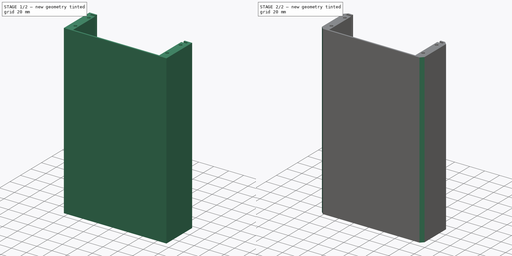
[diagram: build sequence overview — one tinted view per stage of 2, left to right]
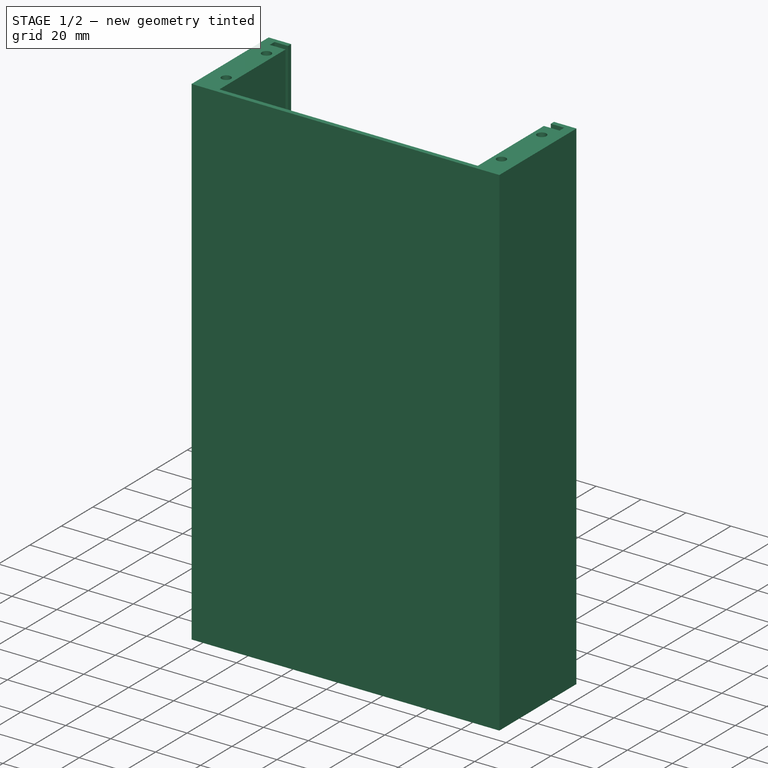
[diagram: stage 1 of 2 — iso view after this stage's code; geometry added in this stage tinted green]
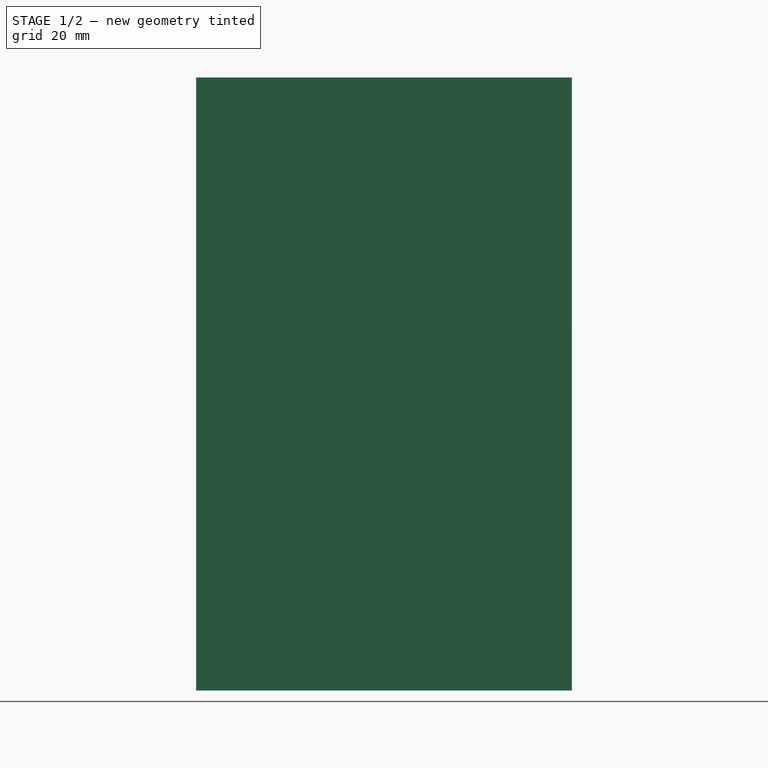
[diagram: stage 1 of 2 — front view after this stage's code; geometry added in this stage tinted green]
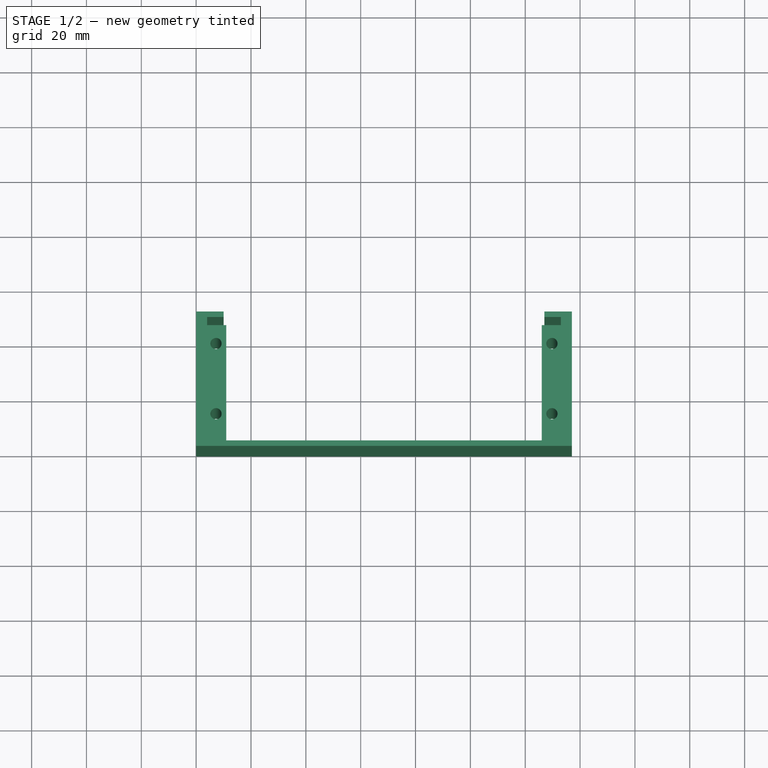
[diagram: stage 1 of 2 — top view after this stage's code; geometry added in this stage tinted green]
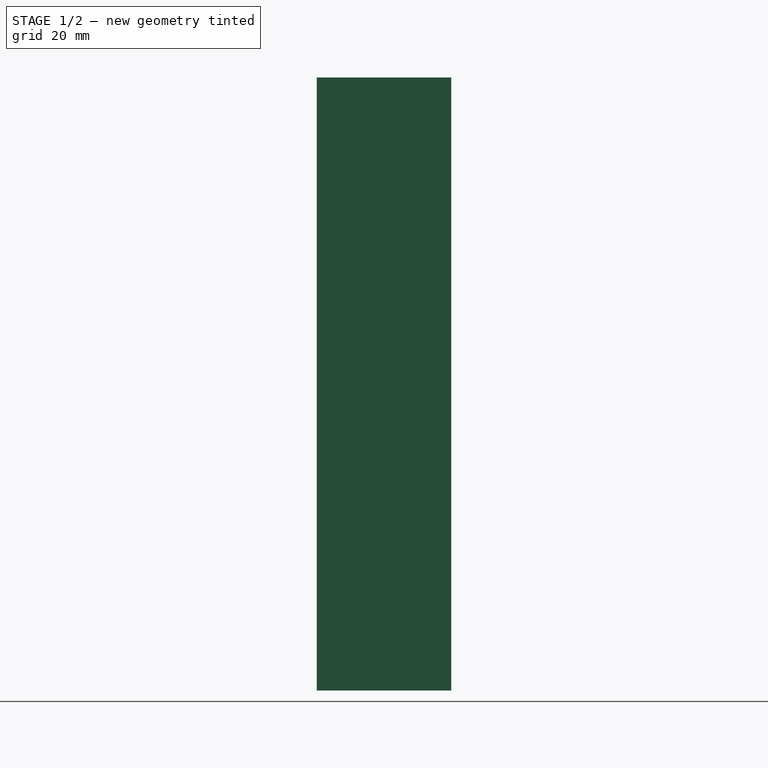
[diagram: stage 1 of 2 — right view after this stage's code; geometry added in this stage tinted green]
FCSTD DOCUMENT  (FreeCAD 0.20R29410 (Git))
Label: backup-modular-ii-main
License: All rights reserved
LicenseURL: http://en.wikipedia.org/wiki/All_rights_reserved
objects: Sketcher::SketchObject×1, PartDesign::Pad×1, PartDesign::Chamfer×1, PartDesign::Body×1
note: 6 computed .brp shape members not serialized (recipe doc carries the construction recipe); baked Part::Feature solids carry a one-line shape summary decoded from their .brp

FEATURE [Sketcher::SketchObject] Sketch
  FullyConstrained = true
  MapMode = 5
  Support = -> [XY_Plane]
  sketch-geometry (36):
    g0: LineSegment StartX=4 StartY=4 StartZ=0 EndX=133 EndY=4 EndZ=0
    g1: LineSegment StartX=133 StartY=4 StartZ=0 EndX=133 EndY=45 EndZ=0
    g2: LineSegment StartX=133 StartY=45 StartZ=0 EndX=4 EndY=45 EndZ=0
    g3: LineSegment StartX=4 StartY=45 StartZ=0 EndX=4 EndY=4 EndZ=0
    g4: LineSegment StartX=0 StartY=0 StartZ=0 EndX=137 EndY=0 EndZ=0
    g5: LineSegment StartX=137 StartY=0 StartZ=0 EndX=137 EndY=49 EndZ=0
    g6: LineSegment StartX=0 StartY=49 StartZ=0 EndX=0 EndY=0 EndZ=0
    g7: LineSegment StartX=7.25 StartY=45 StartZ=0 EndX=7.25 EndY=4 EndZ=0
    g8: LineSegment StartX=129.75 StartY=4 StartZ=0 EndX=129.75 EndY=45 EndZ=0
    g9: Circle CenterX=7.25 CenterY=11.7 CenterZ=0 NormalX=0 NormalY=0 NormalZ=1 AngleXU=0 Radius=2.05
    g10: Circle CenterX=129.75 CenterY=11.7 CenterZ=0 NormalX=0 NormalY=0 NormalZ=1 AngleXU=0 Radius=2.05
    g11: Circle CenterX=7.25 CenterY=32.02 CenterZ=0 NormalX=0 NormalY=0 NormalZ=1 AngleXU=0 Radius=2.05
    g12: Circle CenterX=129.75 CenterY=32.02 CenterZ=0 NormalX=0 NormalY=0 NormalZ=1 AngleXU=0 Radius=2.05
    g13: Circle CenterX=7.25 CenterY=37.3 CenterZ=0 NormalX=0 NormalY=0 NormalZ=1 AngleXU=0 Radius=2.05
    g14: Circle CenterX=129.75 CenterY=37.3 CenterZ=0 NormalX=0 NormalY=0 NormalZ=1 AngleXU=0 Radius=2.05
    g15: LineSegment StartX=11 StartY=44.5 StartZ=0 EndX=126 EndY=44.5 EndZ=0
    g16: LineSegment StartX=126 StartY=44.5 StartZ=0 EndX=126 EndY=4.5 EndZ=0
    g17: LineSegment StartX=126 StartY=4.5 StartZ=0 EndX=11 EndY=4.5 EndZ=0
    g18: LineSegment StartX=11 StartY=4.5 StartZ=0 EndX=11 EndY=44.5 EndZ=0
    g19: LineSegment StartX=7.25 StartY=11.7 StartZ=0 EndX=129.75 EndY=11.7 EndZ=0
    g20: LineSegment StartX=7.25 StartY=32.02 StartZ=0 EndX=129.75 EndY=32.02 EndZ=0
    g21: LineSegment StartX=129.75 StartY=37.3 StartZ=0 EndX=7.25 EndY=37.3 EndZ=0
    g22: LineSegment StartX=10 StartY=49 StartZ=0 EndX=0 EndY=49 EndZ=0
    g23: LineSegment StartX=137 StartY=49 StartZ=0 EndX=127 EndY=49 EndZ=0
    g24: LineSegment StartX=127 StartY=49 StartZ=0 EndX=10 EndY=49 EndZ=0
    g25: LineSegment StartX=10 StartY=49 StartZ=0 EndX=10 EndY=47 EndZ=0
    g26: LineSegment StartX=10 StartY=47 StartZ=0 EndX=4 EndY=47 EndZ=0
    g27: LineSegment StartX=4 StartY=47 StartZ=0 EndX=4 EndY=44 EndZ=0
    g28: LineSegment StartX=4 StartY=44 StartZ=0 EndX=11 EndY=44 EndZ=0
    g29: LineSegment StartX=11 StartY=44 StartZ=0 EndX=11 EndY=2 EndZ=0
    g30: LineSegment StartX=11 StartY=2 StartZ=0 EndX=126 EndY=2 EndZ=0
    g31: LineSegment StartX=126 StartY=2 StartZ=0 EndX=126 EndY=44 EndZ=0
    g32: LineSegment StartX=126 StartY=44 StartZ=0 EndX=133 EndY=44 EndZ=0
    g33: LineSegment StartX=133 StartY=44 StartZ=0 EndX=133 EndY=47 EndZ=0
    g34: LineSegment StartX=133 StartY=47 StartZ=0 EndX=127 EndY=47 EndZ=0
    g35: LineSegment StartX=127 StartY=47 StartZ=0 EndX=127 EndY=49 EndZ=0
  constraints (105):
    c: Coincident(g0,g1)
    c: Coincident(g1,g2)
    c: Coincident(g2,g3)
    c: Coincident(g3,g0)
    c: Horizontal(g0)
    c: Horizontal(g2)
    c: Vertical(g1)
    c: Vertical(g3)
    c: Distance(g0) = 129
    c: Distance(g3) = 41
    c: DistanceX(g0) = 4
    c: DistanceY(g0) = 4
    c: Coincident(g4,g5)
    c: Coincident(g5,g23)
    c: Coincident(g22,g6)
    c: Coincident(g6,g4)
    c: Horizontal(g4)
    c: Vertical(g5)
    c: Vertical(g6)
    c: Coincident(g4,g-1)
    c: Distance(g0,g5) = 4
    c: PointOnObject(g7,g2)
    c: PointOnObject(g7,g0)
    c: Vertical(g7)
    c: PointOnObject(g8,g0)
    c: Vertical(g8)
    c: PointOnObject(g8,g2)
    c: Distance(g8,g1) = 3.25
    c: Distance(g7,g3) = 3.25
    c: PointOnObject(g9,g7)
    c: PointOnObject(g10,g8)
    c: PointOnObject(g11,g7)
    c: PointOnObject(g12,g8)
    c: PointOnObject(g13,g7)
    c: PointOnObject(g14,g8)
    c: Equal(g9,g11)
    c: Equal(g11,g13)
    c: Equal(g13,g10)
    c: Equal(g10,g12)
    c: Equal(g12,g14)
    c: Coincident(g15,g16)
    c: Coincident(g16,g17)
    c: Coincident(g17,g18)
    c: Coincident(g18,g15)
    c: Horizontal(g15)
    c: Horizontal(g17)
    c: Vertical(g16)
    c: Vertical(g18)
    c: Distance(g15,g2) = 0.5
    c: Distance(g17,g0) = 0.5
    c: Distance(g15,g3) = 7
    c: Distance(g15,g1) = 7
    c: Distance(g9,g0) = 7.7
    c: Coincident(g19,g9)
    c: Coincident(g19,g10)
    c: Horizontal(g19)
    c: Diameter(g9) = 4.1
    c: Coincident(g20,g11)
    c: Coincident(g20,g12)
    c: Horizontal(g20)
    c: Coincident(g21,g14)
    c: Coincident(g21,g13)
    c: Horizontal(g21)
    c: Distance(g11,g19) = 20.32
    c: Distance(g13,g2) = 7.7
    c: Coincident(g24,g22)
    c: Horizontal(g22)
    c: Distance(g2,g22) = 4
    c: Coincident(g23,g24)
    c: Horizontal(g23)
    c: Horizontal(g24)
    c: Distance(g22) = 10
    c: Equal(g22,g23)
    c: Coincident(g22,g25)
    c: Vertical(g25)
    c: Coincident(g25,g26)
    c: Horizontal(g26)
    c: Coincident(g26,g27)
    c: PointOnObject(g27,g3)
    c: Vertical(g27)
    c: Coincident(g27,g28)
    c: Horizontal(g28)
    c: Coincident(g28,g29)
    c: Vertical(g29)
    c: Coincident(g29,g30)
    c: Horizontal(g30)
    c: Coincident(g30,g31)
    c: Vertical(g31)
    c: Coincident(g31,g32)
    c: Horizontal(g32)
    c: Coincident(g32,g33)
    c: Vertical(g33)
    c: Coincident(g33,g34)
    c: Horizontal(g34)
    c: Coincident(g34,g35)
    c: Vertical(g35)
    c: Coincident(g23,g35)
    c: Equal(g35,g25)
    c: Distance(g25) = 2
    c: Distance(g27) = 3
    c: Equal(g27,g33)
    c: Distance(g30,g4) = 2
    c: Equal(g26,g34)
    c: Equal(g32,g28)
    c: Distance(g28,g6) = 11
FEATURE [PartDesign::Pad] Pad
  Direction = (0,0,1)
  Length = 223.52
  Length2 = 10
  Profile = -> Sketch
  ReferenceAxis = -> Sketch [N_Axis]
  Type = 0
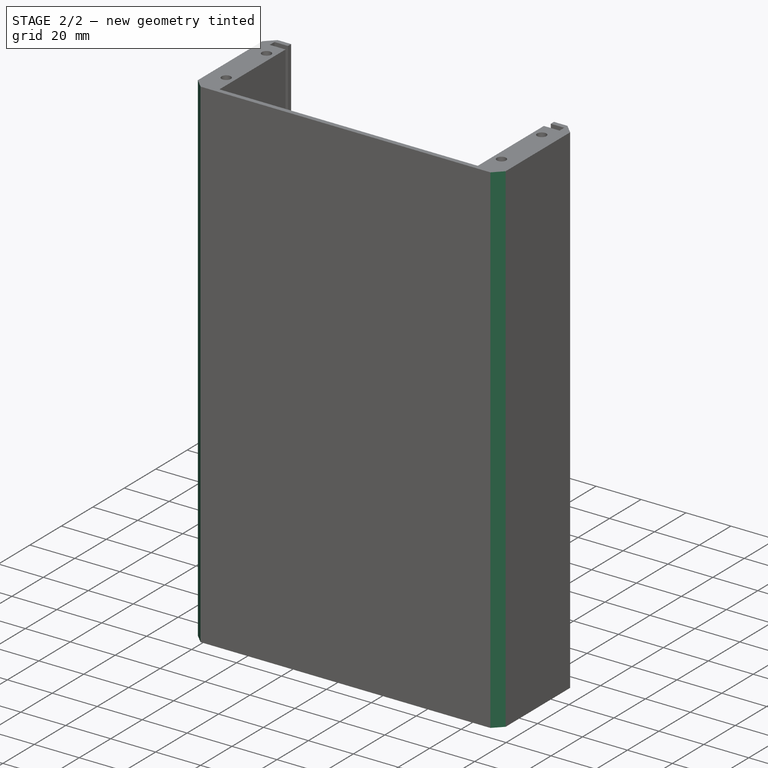
[diagram: stage 2 of 2 — iso view after this stage's code; geometry added in this stage tinted green]
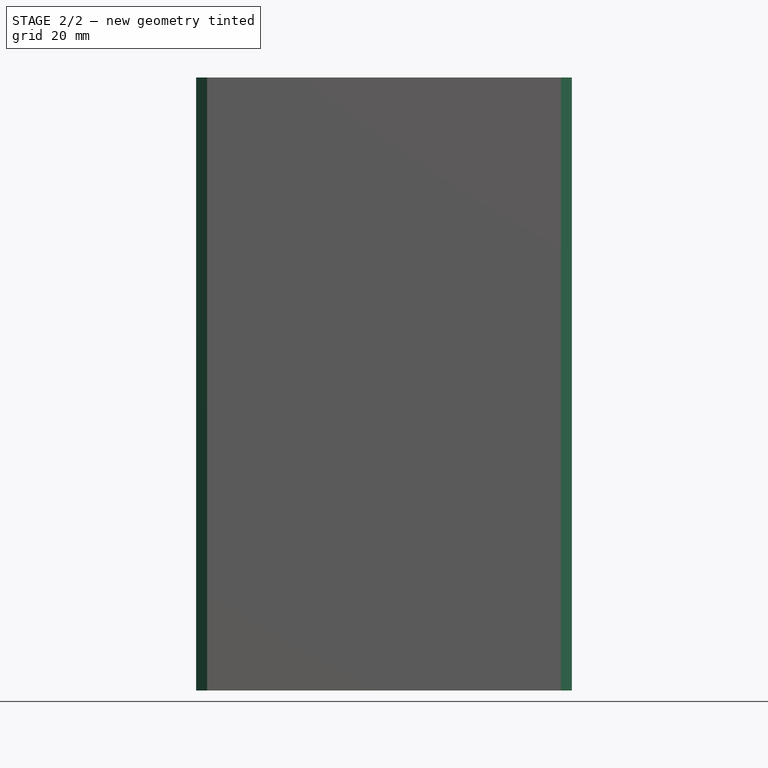
[diagram: stage 2 of 2 — front view after this stage's code; geometry added in this stage tinted green]
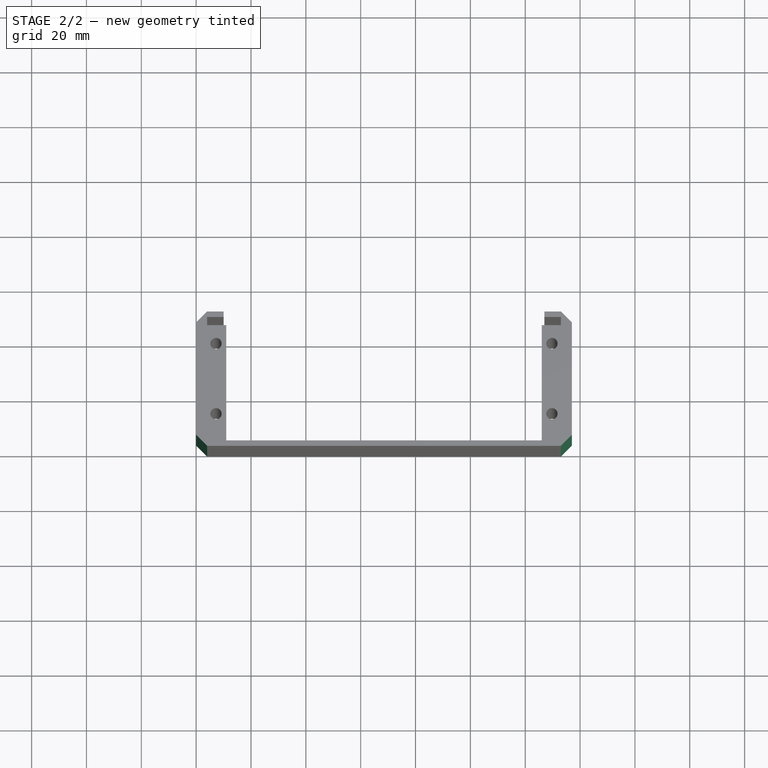
[diagram: stage 2 of 2 — top view after this stage's code; geometry added in this stage tinted green]
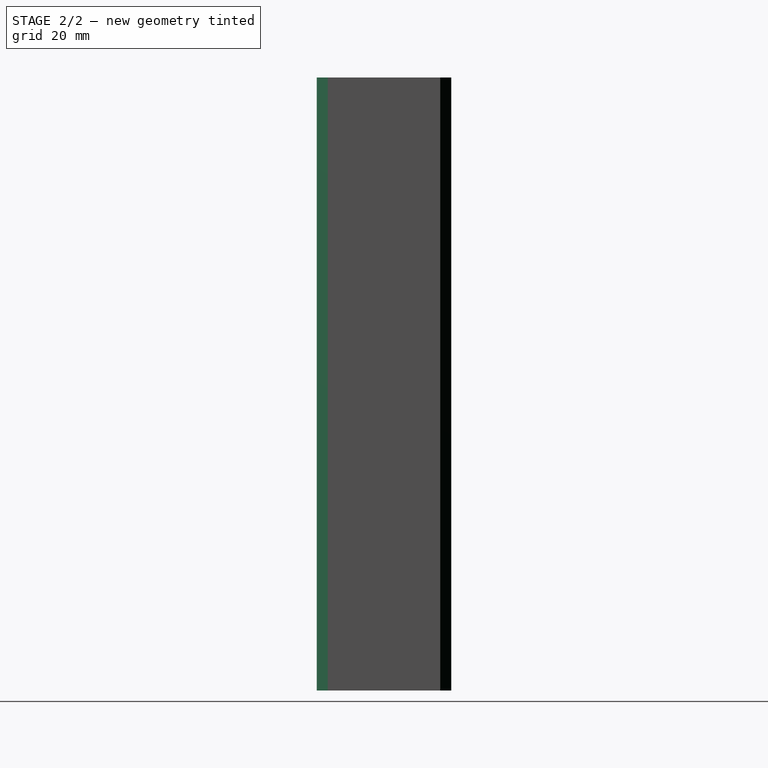
[diagram: stage 2 of 2 — right view after this stage's code; geometry added in this stage tinted green]
FEATURE [PartDesign::Chamfer] Chamfer
  Angle = 45
  Base = -> Pad [Edge2,Edge11,Edge8,Edge5]
  BaseFeature = -> Pad
  ChamferType = 0
  FlipDirection = false
  Size = 4
  Size2 = 1
  SupportTransform = false
  UseAllEdges = false
FEATURE [PartDesign::Body] Body
  Group = -> [Sketch,Pad,Chamfer]
  Origin = -> Origin
  Tip = -> Chamfer
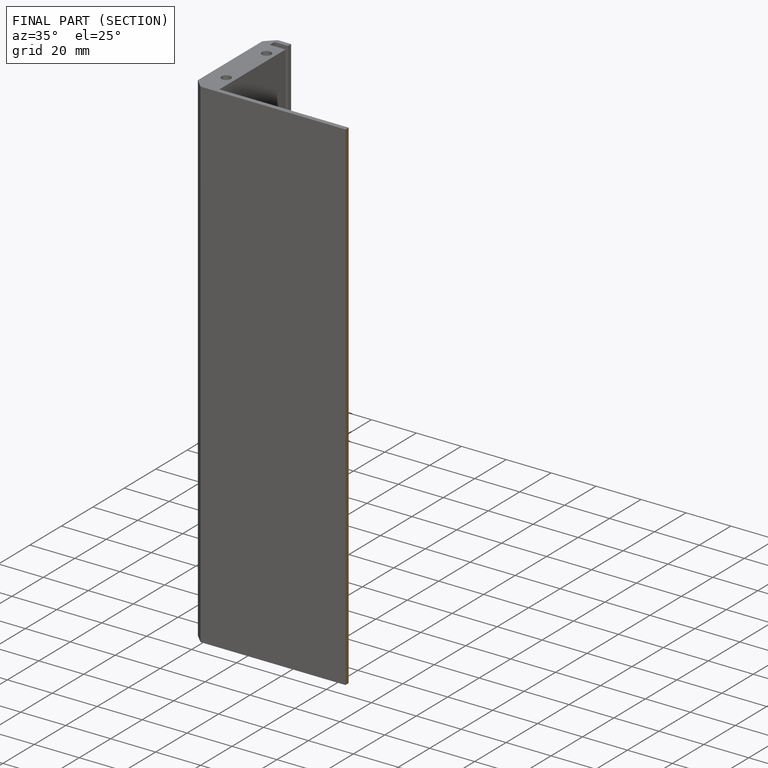
[diagram: finished part — half-section view (interior)]
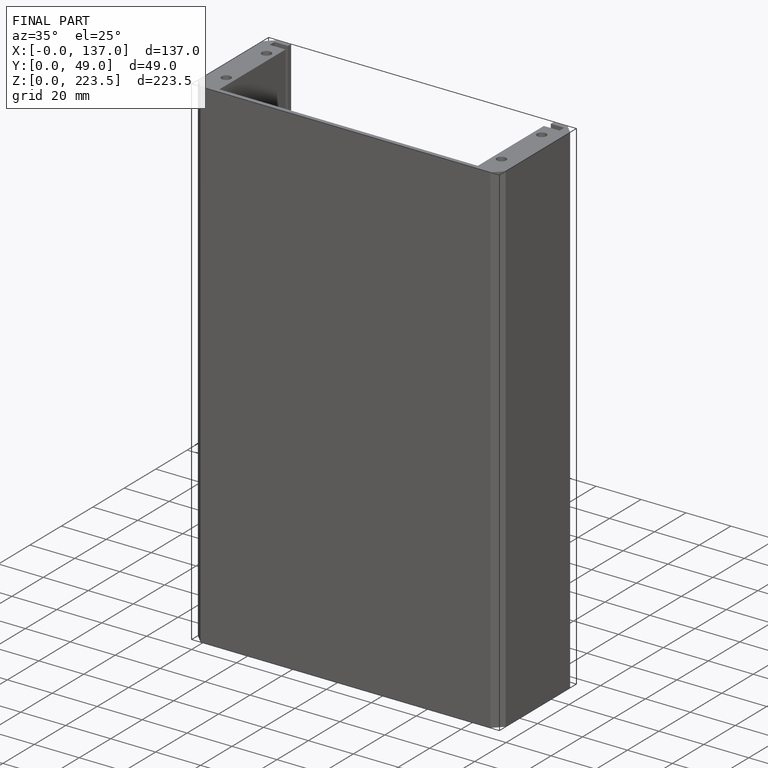
[diagram: finished part — iso view with bounding-box wireframe]
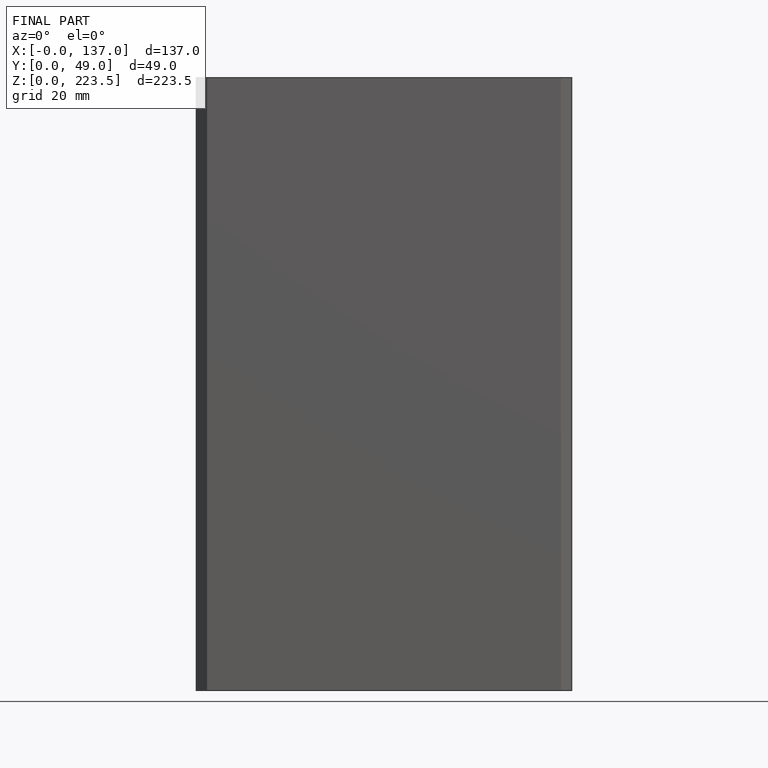
[diagram: finished part — front view with bounding-box wireframe]
